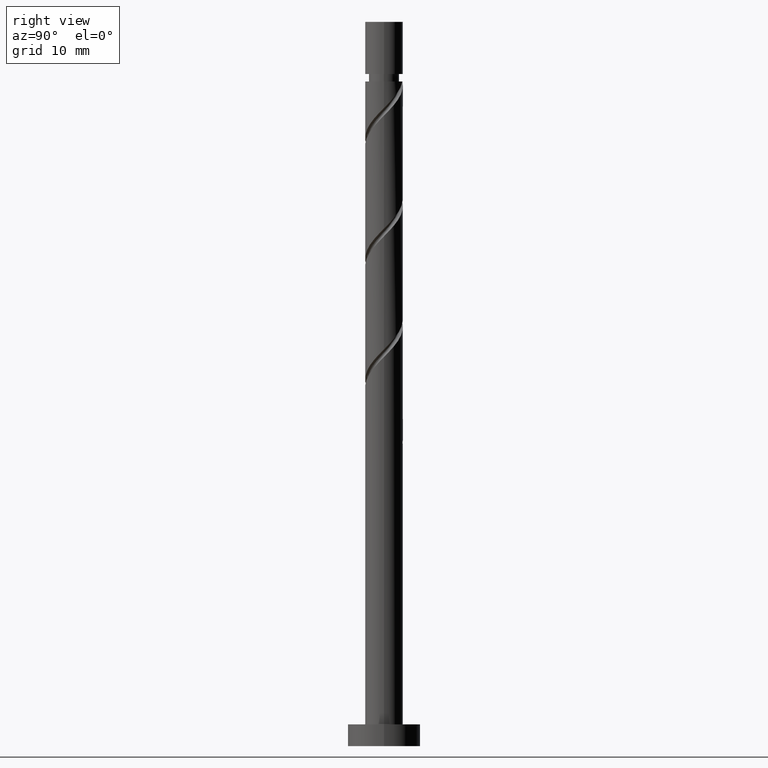
[diagram: clean part render]
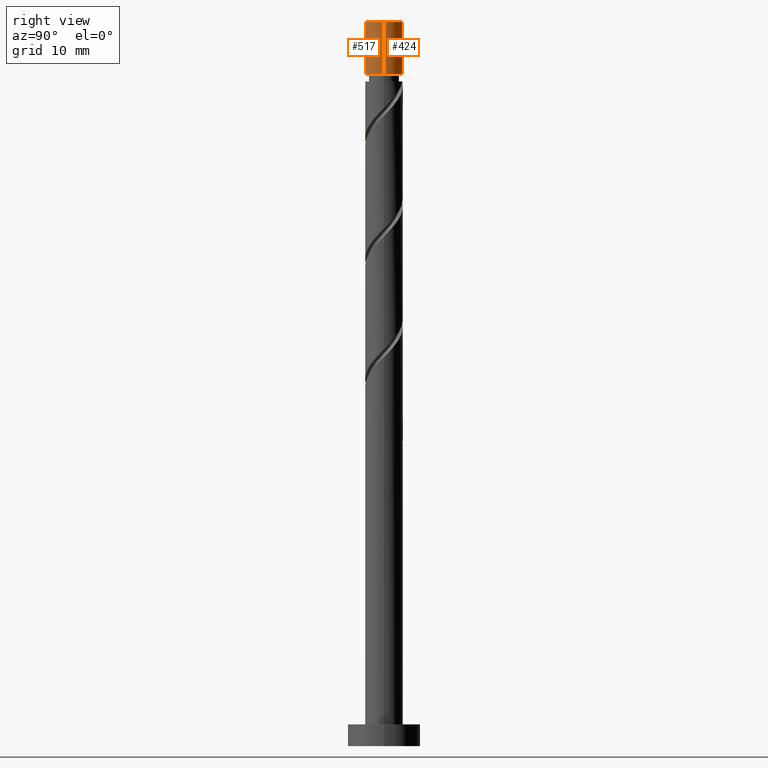
[diagram: same view with one multi-face feature highlighted, each face labeled with its STEP entity id]
A machine part, right view. The highlighted faces form ONE feature: a constant-radius fillet chain: 2 tangent blend faces with common blend radius 2.6 mm. The faces share edges in the B-rep.
Their STEP definitions:
[1] entity #424 (Cylinder):
#31 = VERTEX_POINT ( 'NONE', #174 ) ;
#62 = AXIS2_PLACEMENT_3D ( 'NONE', #203, #97, #773 ) ;
#75 = EDGE_LOOP ( 'NONE', ( #602, #253, #1160, #976 ) ) ;
#85 = CIRCLE ( 'NONE', #62, 2.600000000000000089 ) ;
#91 = DIRECTION ( 'NONE',  ( -1.000000000000000000, 0.000000000000000000, 0.000000000000000000 ) ) ;
#97 = DIRECTION ( 'NONE',  ( 0.000000000000000000, 0.000000000000000000, 1.000000000000000000 ) ) ;
#129 = CARTESIAN_POINT ( 'NONE',  ( 2.600000000000000089, 3.184081677783117698E-16, 100.0000000000000000 ) ) ;
#133 = CARTESIAN_POINT ( 'NONE',  ( -2.600000000000000533, 0.000000000000000000, 92.80343632856543934 ) ) ;
#174 = CARTESIAN_POINT ( 'NONE',  ( -2.600000000000000089, 0.000000000000000000, 100.0000000000000000 ) ) ;
#180 = AXIS2_PLACEMENT_3D ( 'NONE', #1224, #646, #91 ) ;
#203 = CARTESIAN_POINT ( 'NONE',  ( 0.000000000000000000, 0.000000000000000000, 100.0000000000000000 ) ) ;
#213 = DIRECTION ( 'NONE',  ( -0.000000000000000000, -0.000000000000000000, -1.000000000000000000 ) ) ;
#253 = ORIENTED_EDGE ( 'NONE', *, *, #319, .T. ) ;
#275 = CYLINDRICAL_SURFACE ( 'NONE', #812, 2.600000000000000089 ) ;
#301 = VERTEX_POINT ( 'NONE', #991 ) ;
#312 = EDGE_CURVE ( 'NONE', #1485, #31, #85, .T. ) ;
#319 = EDGE_CURVE ( 'NONE', #1485, #301, #333, .T. ) ;
#333 = LINE ( 'NONE', #1235, #1272 ) ;
#399 = DIRECTION ( 'NONE',  ( -0.000000000000000000, -0.000000000000000000, -1.000000000000000000 ) ) ;
#424 = ADVANCED_FACE ( 'NONE', ( #952 ), #275, .T. ) ;
#476 = EDGE_CURVE ( 'NONE', #1220, #301, #765, .T. ) ;
#579 = DIRECTION ( 'NONE',  ( -0.000000000000000000, -0.000000000000000000, -1.000000000000000000 ) ) ;
#602 = ORIENTED_EDGE ( 'NONE', *, *, #312, .F. ) ;
#646 = DIRECTION ( 'NONE',  ( -0.000000000000000000, -0.000000000000000000, -1.000000000000000000 ) ) ;
#730 = DIRECTION ( 'NONE',  ( -1.000000000000000000, 0.000000000000000000, 0.000000000000000000 ) ) ;
#765 = CIRCLE ( 'NONE', #180, 2.600000000000000533 ) ;
#768 = EDGE_CURVE ( 'NONE', #31, #1220, #794, .T. ) ;
#773 = DIRECTION ( 'NONE',  ( 1.000000000000000000, 0.000000000000000000, 0.000000000000000000 ) ) ;
#794 = LINE ( 'NONE', #1477, #1051 ) ;
#812 = AXIS2_PLACEMENT_3D ( 'NONE', #1415, #399, #730 ) ;
#952 = FACE_OUTER_BOUND ( 'NONE', #75, .T. ) ;
#976 = ORIENTED_EDGE ( 'NONE', *, *, #768, .F. ) ;
#991 = CARTESIAN_POINT ( 'NONE',  ( 2.600000000000000977, 3.184081677783119177E-16, 92.80343632856543934 ) ) ;
#1051 = VECTOR ( 'NONE', #579, 1000.000000000000000 ) ;
#1160 = ORIENTED_EDGE ( 'NONE', *, *, #476, .F. ) ;
#1220 = VERTEX_POINT ( 'NONE', #133 ) ;
#1224 = CARTESIAN_POINT ( 'NONE',  ( 0.000000000000000000, 0.000000000000000000, 92.80343632856543934 ) ) ;
#1235 = CARTESIAN_POINT ( 'NONE',  ( 2.600000000000000089, 3.184081677783117698E-16, 100.0000000000000000 ) ) ;
#1272 = VECTOR ( 'NONE', #213, 1000.000000000000000 ) ;
#1415 = CARTESIAN_POINT ( 'NONE',  ( 0.000000000000000000, 0.000000000000000000, 100.0000000000000000 ) ) ;
#1477 = CARTESIAN_POINT ( 'NONE',  ( -2.600000000000000089, 0.000000000000000000, 100.0000000000000000 ) ) ;
#1485 = VERTEX_POINT ( 'NONE', #129 ) ;
[2] entity #517 (Cylinder):
#31 = VERTEX_POINT ( 'NONE', #174 ) ;
#115 = ORIENTED_EDGE ( 'NONE', *, *, #359, .F. ) ;
#129 = CARTESIAN_POINT ( 'NONE',  ( 2.600000000000000089, 3.184081677783117698E-16, 100.0000000000000000 ) ) ;
#133 = CARTESIAN_POINT ( 'NONE',  ( -2.600000000000000533, 0.000000000000000000, 92.80343632856543934 ) ) ;
#174 = CARTESIAN_POINT ( 'NONE',  ( -2.600000000000000089, 0.000000000000000000, 100.0000000000000000 ) ) ;
#213 = DIRECTION ( 'NONE',  ( -0.000000000000000000, -0.000000000000000000, -1.000000000000000000 ) ) ;
#301 = VERTEX_POINT ( 'NONE', #991 ) ;
#319 = EDGE_CURVE ( 'NONE', #1485, #301, #333, .T. ) ;
#333 = LINE ( 'NONE', #1235, #1272 ) ;
#359 = EDGE_CURVE ( 'NONE', #301, #1220, #396, .T. ) ;
#384 = DIRECTION ( 'NONE',  ( -1.000000000000000000, 0.000000000000000000, 0.000000000000000000 ) ) ;
#396 = CIRCLE ( 'NONE', #1150, 2.600000000000000533 ) ;
#430 = CARTESIAN_POINT ( 'NONE',  ( 0.000000000000000000, 0.000000000000000000, 100.0000000000000000 ) ) ;
#480 = EDGE_LOOP ( 'NONE', ( #1356, #1370, #1408, #115 ) ) ;
#517 = ADVANCED_FACE ( 'NONE', ( #696 ), #958, .T. ) ;
#579 = DIRECTION ( 'NONE',  ( -0.000000000000000000, -0.000000000000000000, -1.000000000000000000 ) ) ;
#601 = DIRECTION ( 'NONE',  ( -1.000000000000000000, 0.000000000000000000, 0.000000000000000000 ) ) ;
#677 = AXIS2_PLACEMENT_3D ( 'NONE', #430, #1225, #870 ) ;
#696 = FACE_OUTER_BOUND ( 'NONE', #480, .T. ) ;
#768 = EDGE_CURVE ( 'NONE', #31, #1220, #794, .T. ) ;
#794 = LINE ( 'NONE', #1477, #1051 ) ;
#826 = CARTESIAN_POINT ( 'NONE',  ( 0.000000000000000000, 0.000000000000000000, 100.0000000000000000 ) ) ;
#870 = DIRECTION ( 'NONE',  ( 1.000000000000000000, 0.000000000000000000, 0.000000000000000000 ) ) ;
#958 = CYLINDRICAL_SURFACE ( 'NONE', #1342, 2.600000000000000089 ) ;
#991 = CARTESIAN_POINT ( 'NONE',  ( 2.600000000000000977, 3.184081677783119177E-16, 92.80343632856543934 ) ) ;
#1051 = VECTOR ( 'NONE', #579, 1000.000000000000000 ) ;
#1150 = AXIS2_PLACEMENT_3D ( 'NONE', #1277, #1377, #601 ) ;
#1181 = DIRECTION ( 'NONE',  ( -0.000000000000000000, -0.000000000000000000, -1.000000000000000000 ) ) ;
#1220 = VERTEX_POINT ( 'NONE', #133 ) ;
#1225 = DIRECTION ( 'NONE',  ( 0.000000000000000000, 0.000000000000000000, 1.000000000000000000 ) ) ;
#1235 = CARTESIAN_POINT ( 'NONE',  ( 2.600000000000000089, 3.184081677783117698E-16, 100.0000000000000000 ) ) ;
#1272 = VECTOR ( 'NONE', #213, 1000.000000000000000 ) ;
#1277 = CARTESIAN_POINT ( 'NONE',  ( 0.000000000000000000, 0.000000000000000000, 92.80343632856543934 ) ) ;
#1342 = AXIS2_PLACEMENT_3D ( 'NONE', #826, #1181, #384 ) ;
#1349 = EDGE_CURVE ( 'NONE', #31, #1485, #1472, .T. ) ;
#1356 = ORIENTED_EDGE ( 'NONE', *, *, #319, .F. ) ;
#1370 = ORIENTED_EDGE ( 'NONE', *, *, #1349, .F. ) ;
#1377 = DIRECTION ( 'NONE',  ( -0.000000000000000000, -0.000000000000000000, -1.000000000000000000 ) ) ;
#1408 = ORIENTED_EDGE ( 'NONE', *, *, #768, .T. ) ;
#1472 = CIRCLE ( 'NONE', #677, 2.600000000000000089 ) ;
#1477 = CARTESIAN_POINT ( 'NONE',  ( -2.600000000000000089, 0.000000000000000000, 100.0000000000000000 ) ) ;
#1485 = VERTEX_POINT ( 'NONE', #129 ) ;